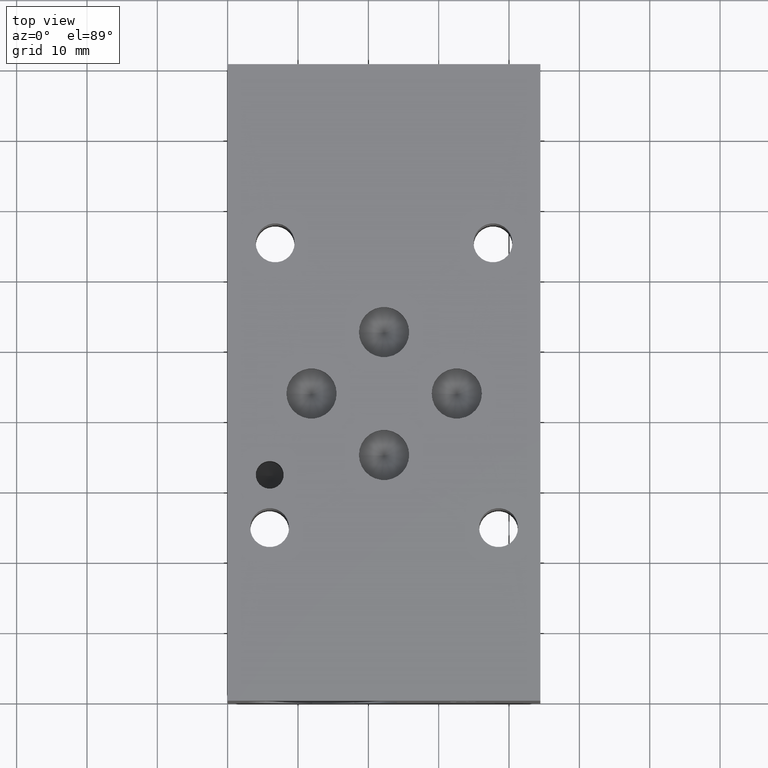
[diagram: clean part render]
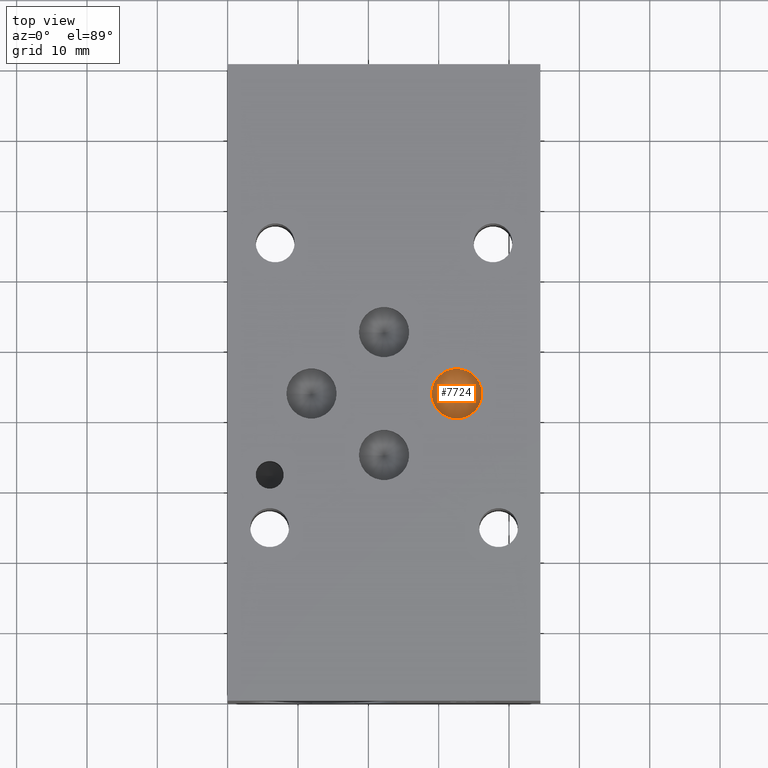
[diagram: same view with one face highlighted and labeled with its STEP entity id]
A machine part, top view. The second image highlights one B-rep face of the part: STEP entity #7724.
In plain terms, the highlighted conical surface has half-angle 60 deg.
Its self-contained STEP definition (entity closure, byte-faithful):
#57=CONICAL_SURFACE('',#8108,1.78435,1.0471975511966);
#114=CIRCLE('',#8109,3.5687);
#829=FACE_OUTER_BOUND('',#1269,.T.);
#1269=EDGE_LOOP('',(#6665,#6666,#6667));
#2098=LINE('',#12916,#2906);
#2906=VECTOR('',#9639,1.78435);
#3602=VERTEX_POINT('',#12913);
#3603=VERTEX_POINT('',#12915);
#4638=EDGE_CURVE('',#3602,#3602,#114,.T.);
#4639=EDGE_CURVE('',#3602,#3603,#2098,.T.);
#6665=ORIENTED_EDGE('',*,*,#4638,.T.);
#6666=ORIENTED_EDGE('',*,*,#4639,.T.);
#6667=ORIENTED_EDGE('',*,*,#4639,.F.);
#7724=ADVANCED_FACE('',(#829),#57,.F.);
#8108=AXIS2_PLACEMENT_3D('',#12912,#9635,#9636);
#8109=AXIS2_PLACEMENT_3D('',#12914,#9637,#9638);
#9635=DIRECTION('center_axis',(0.,0.,1.));
#9636=DIRECTION('ref_axis',(1.,0.,0.));
#9637=DIRECTION('center_axis',(0.,0.,1.));
#9638=DIRECTION('ref_axis',(1.,0.,0.));
#9639=DIRECTION('',(0.866025403784439,1.06057523872491E-16,-0.5));
#12912=CARTESIAN_POINT('Origin',(32.5628,43.6626,22.3094150471715));
#12913=CARTESIAN_POINT('',(28.9941,43.6626,23.33961));
#12914=CARTESIAN_POINT('Origin',(32.5628,43.6626,23.33961));
#12915=CARTESIAN_POINT('',(32.5628,43.6626,21.279220094343));
#12916=CARTESIAN_POINT('',(30.77845,43.6626,22.3094150471715));